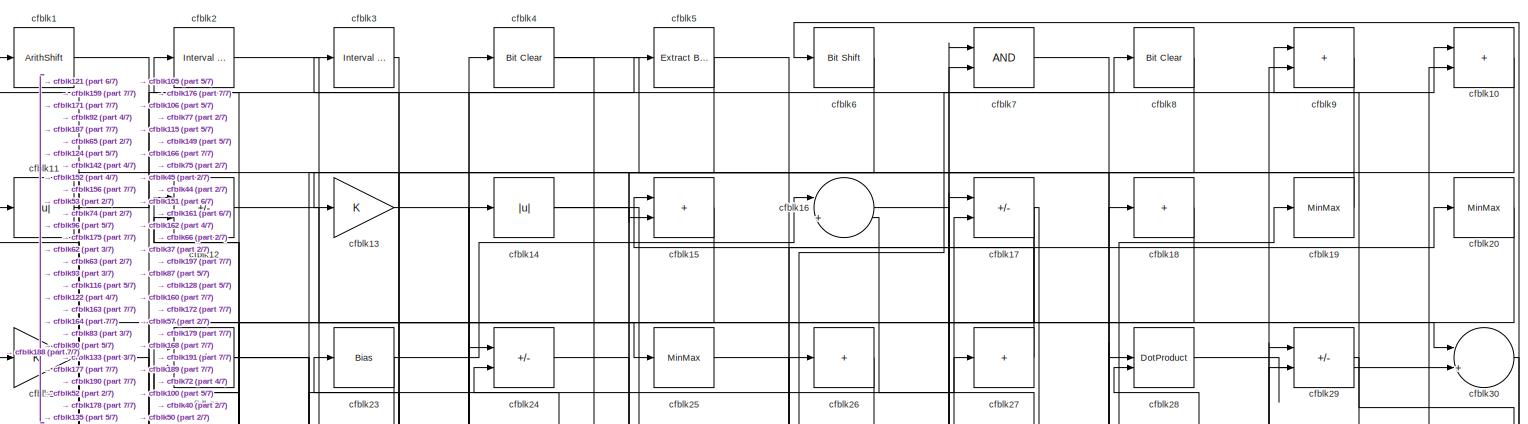
[diagram: root canvas - part 1/7, full width, top band]
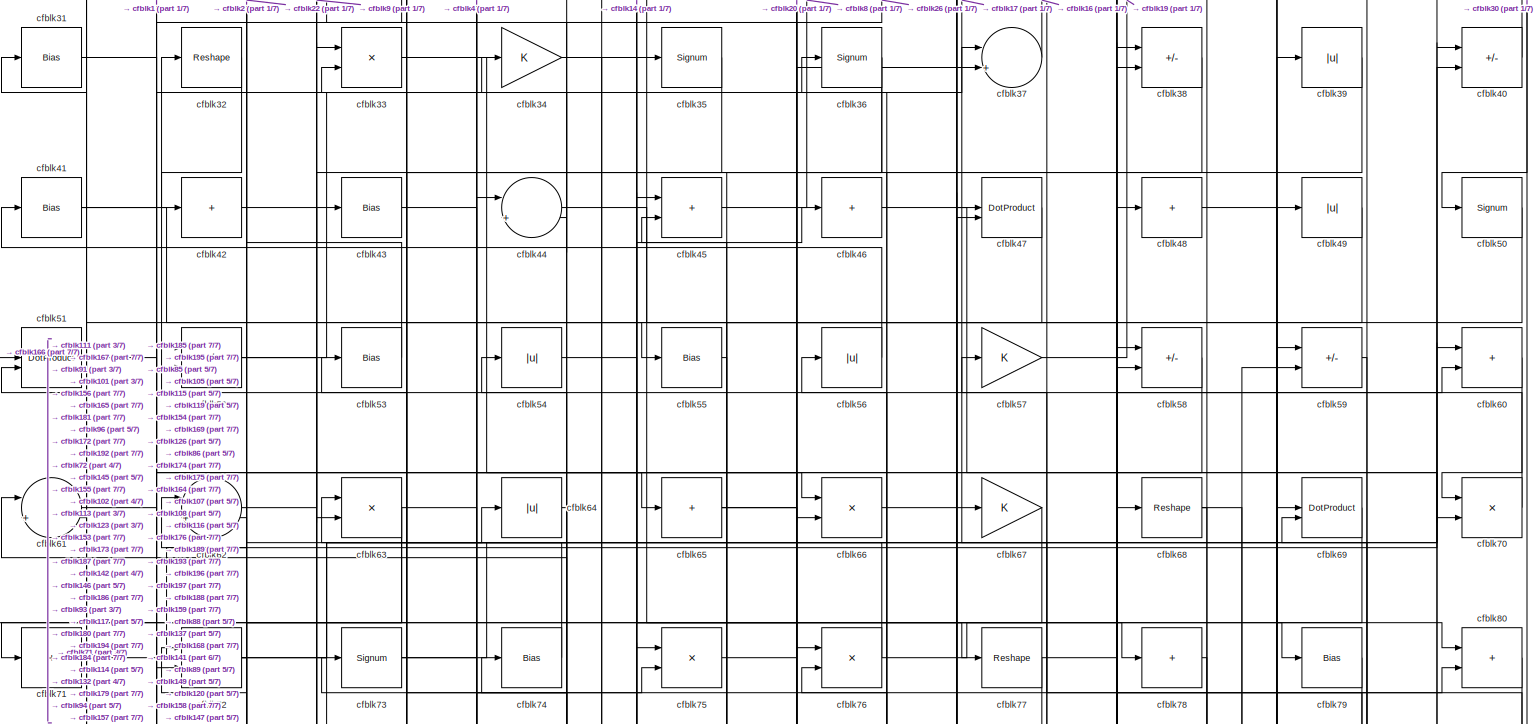
[diagram: root canvas - part 2/7, full width, top band]
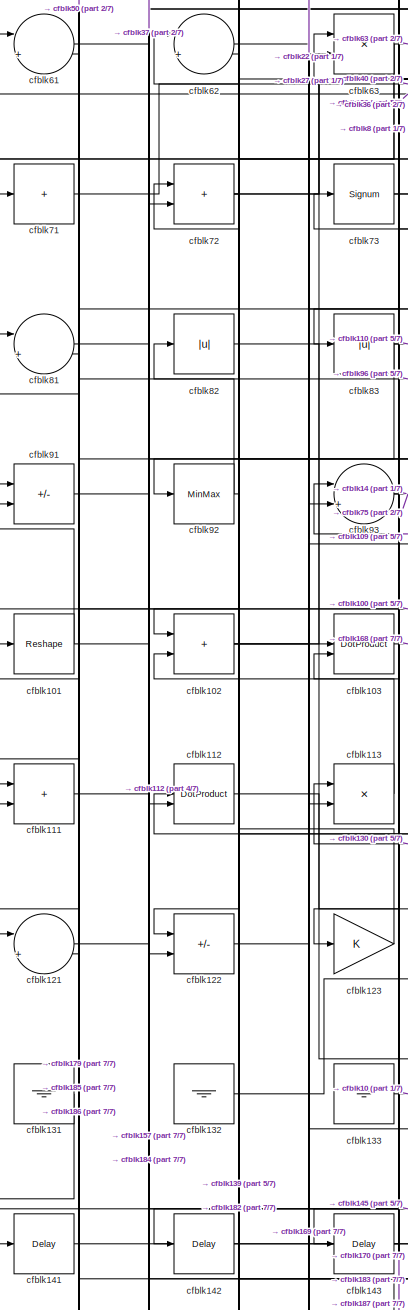
[diagram: root canvas - part 3/7, middle left region]
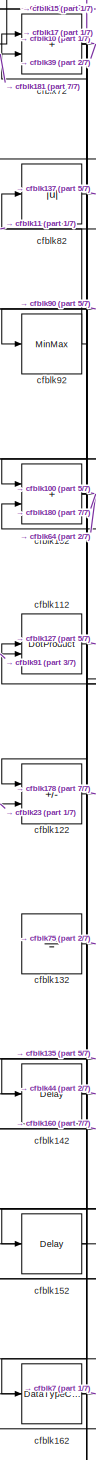
[diagram: root canvas - part 4/7, middle left region]
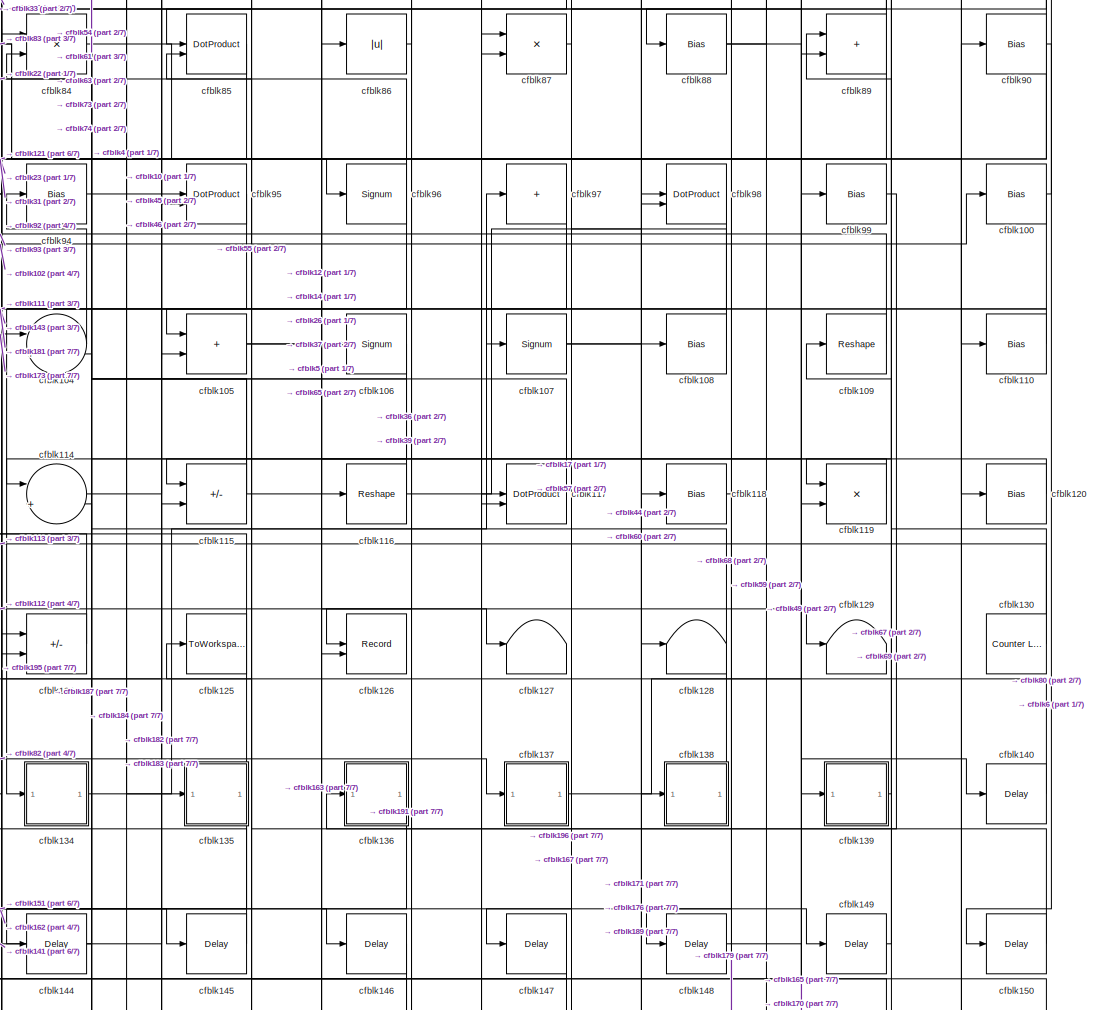
[diagram: root canvas - part 5/7, central region]
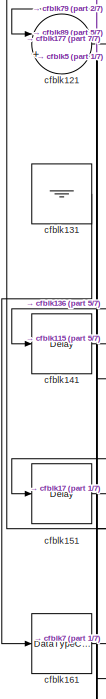
[diagram: root canvas - part 6/7, bottom left region]
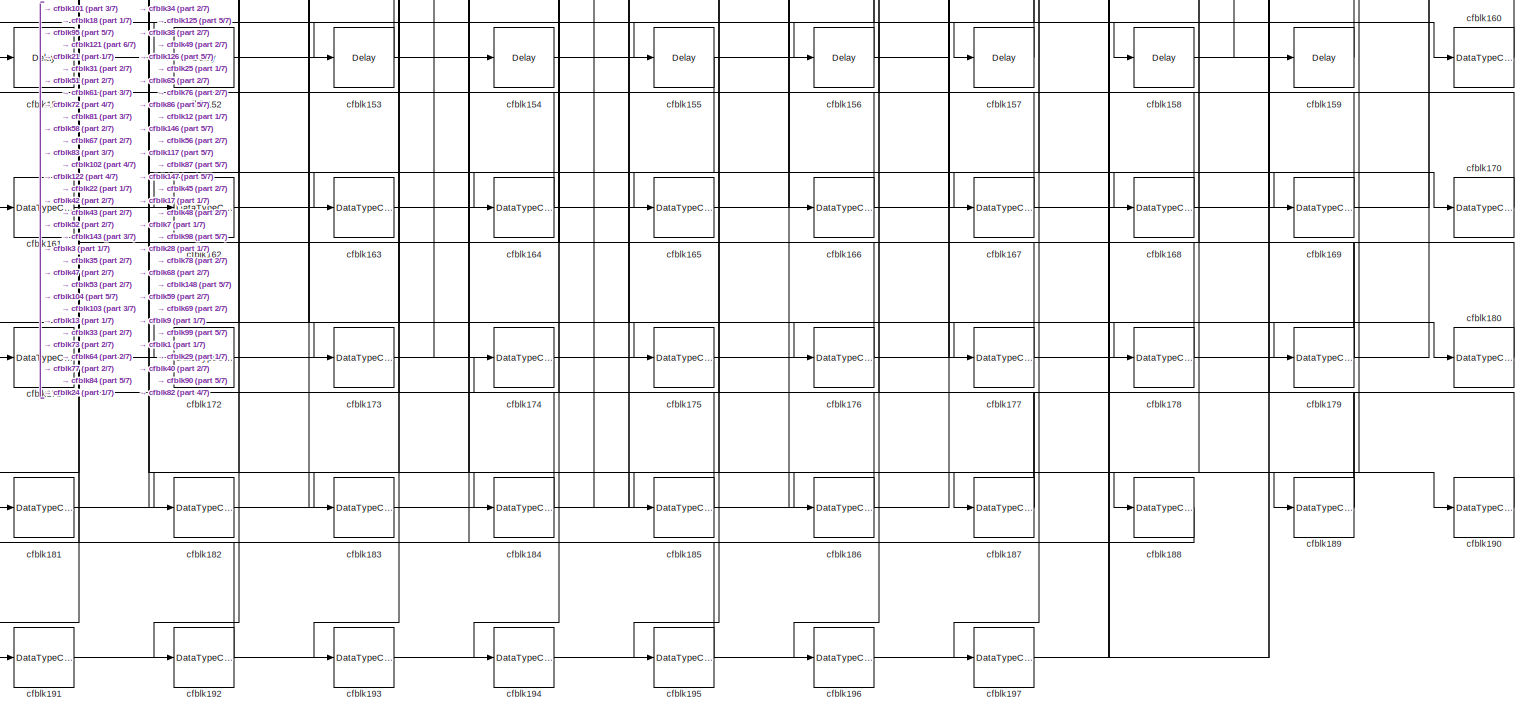
[diagram: root canvas - part 7/7, full width, bottom band]
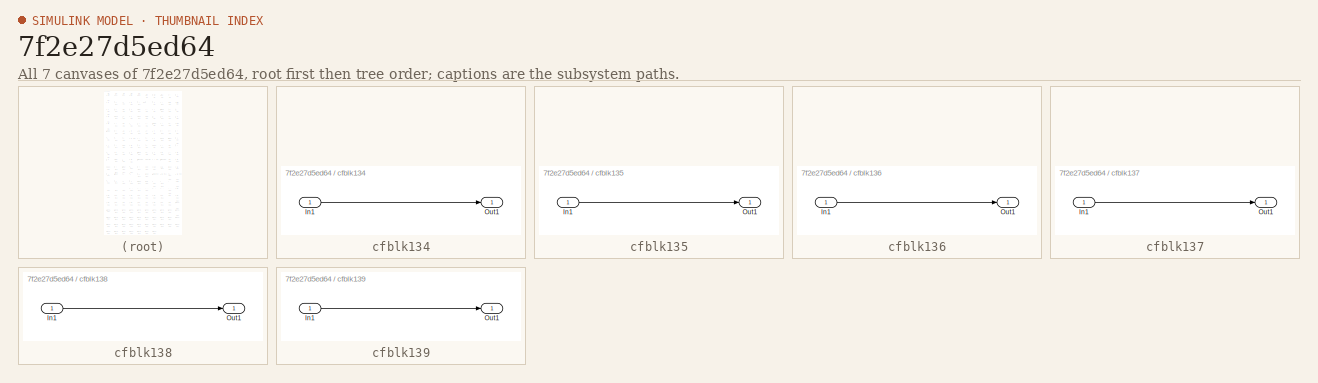
[diagram: thumbnail index - all 7 canvases of the model, root first then tree order]
MODEL slx_7f2e27d5ed64
KIND model
CONFIG AbsTol = auto
CONFIG EnableMultiTasking = off
CONFIG FixedStep = auto
CONFIG MaxStep = auto
CONFIG MinStep = auto
CONFIG RelTol = 1e-3
CONFIG SampleTimeConstraint = Unconstrained
CONFIG SolverName = VariableStepAuto
CONFIG StartTime = 0.0
CONFIG StopTime = 10.0
BLOCK [ArithShift] cfblk1
  BitShiftNumber = 8
  InputPortMap = u0
BLOCK [Sum] cfblk10
  IconShape = rectangular
BLOCK [Bias] cfblk100
  Bias = 0.0
  SaturateOnIntegerOverflow = off
BLOCK [Reshape] cfblk101
BLOCK [Sum] cfblk102
  IconShape = rectangular
BLOCK [DotProduct] cfblk103
  OutDataTypeStr = Inherit: Inherit via internal rule
BLOCK [Sum] cfblk104
  Inputs = |++
BLOCK [Sum] cfblk105
  IconShape = rectangular
BLOCK [Signum] cfblk106
BLOCK [Signum] cfblk107
BLOCK [Bias] cfblk108
  Bias = 0.0
  SaturateOnIntegerOverflow = off
BLOCK [Reshape] cfblk109
BLOCK [Abs] cfblk11
  SaturateOnIntegerOverflow = off
BLOCK [Bias] cfblk110
  Bias = 0.0
  SaturateOnIntegerOverflow = off
BLOCK [Sum] cfblk111
  IconShape = rectangular
BLOCK [DotProduct] cfblk112
  OutDataTypeStr = Inherit: Inherit via internal rule
BLOCK [Product] cfblk113
  Inputs = */
  RndMeth = Zero
  SaturateOnIntegerOverflow = on
BLOCK [Sum] cfblk114
  Inputs = |++
BLOCK [Sum] cfblk115
  IconShape = rectangular
  Inputs = +-
BLOCK [Reshape] cfblk116
BLOCK [DotProduct] cfblk117
  OutDataTypeStr = Inherit: Inherit via internal rule
BLOCK [Bias] cfblk118
  Bias = 0.0
  SaturateOnIntegerOverflow = off
BLOCK [Product] cfblk119
  Inputs = */
  RndMeth = Zero
  SaturateOnIntegerOverflow = on
BLOCK [Sum] cfblk12
  IconShape = rectangular
  Inputs = +-
BLOCK [Bias] cfblk120
  Bias = 0.0
  SaturateOnIntegerOverflow = off
BLOCK [Sum] cfblk121
  Inputs = |++
BLOCK [Sum] cfblk122
  IconShape = rectangular
  Inputs = +-
BLOCK [Gain] cfblk123
BLOCK [Sum] cfblk124
  IconShape = rectangular
  Inputs = +-
BLOCK [ToWorkspace] cfblk125
  MaxDataPoints = inf
  SampleTime = -1
  SaveFormat = Timeseries
  VariableName = simout
BLOCK [Record] cfblk126
  CompatibilityTag = XY
  FileSettingsInternal = {"entries":[{"content":{"excelSettings":{"content":{},"type":"Streamout.ExcelSettings"}},"type":"Streamout.FileSettingStorage","uuid":""}],"packageUris":["http:\/\/schema.mathworks.com\/mf0\/streamout_blocks\/R2020a"],"version":"1.0"}
  Layout = [1 1]
  SignalsInternal = {"entries":[{"content":{"signals":[{"content":{"blockPath":[],"dimensions":[1],"domain":"","lineColor":"#a2142f","plots":[1],"port":1,"signalID":846,"signalName":"XY Graph:1"},"type":"RecordBlkView.Signal","uuid":""},{"content":{"blockPath":[],"dimensions":[1],"domain":"","lineColor":"#139fff","plots":[1],"port":2,"signalID":849,"signalName":"XY Graph:2"},"type":"RecordBlkView.Signal","uuid":""}]}...<+144ch>
  VisualizationBindings = {"xyplotplugin":{"info":[{"series":[{"bindingParametersList":[{"parameter":"X-Axis","signalID":846,"signalName":"XY Graph:1"},{"parameter":"Y-Axis","signalID":849,"signalName":"XY Graph:2"}],"seriesID":27397}],"subplotID":1}]}}
  st = -1
BLOCK [Terminator] cfblk127
BLOCK [Terminator] cfblk128
BLOCK [Terminator] cfblk129
BLOCK [Gain] cfblk13
BLOCK [Reference] cfblk130  REF=hdlsllib/Sources/Counter
Limited
  SourceBlock = hdlsllib/Sources/Counter\nLimited
  SourceType = Counter Limited
BLOCK [Ground] cfblk131
BLOCK [Ground] cfblk132
BLOCK [Ground] cfblk133
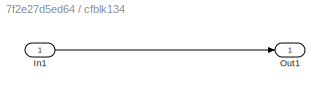
BLOCK [SubSystem] cfblk134
  LibrarySourceBlock = hdlsllib/Ports &\nSubsystems/Subsystem
BLOCK [Inport] cfblk134/In1
BLOCK [Outport] cfblk134/Out1
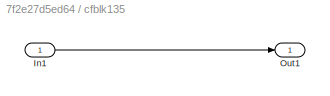
BLOCK [SubSystem] cfblk135
  LibrarySourceBlock = hdlsllib/Ports &\nSubsystems/Subsystem
BLOCK [Inport] cfblk135/In1
BLOCK [Outport] cfblk135/Out1
BLOCK [SubSystem] cfblk136
  LibrarySourceBlock = hdlsllib/Ports &\nSubsystems/Subsystem
BLOCK [Inport] cfblk136/In1
BLOCK [Outport] cfblk136/Out1
BLOCK [SubSystem] cfblk137
  LibrarySourceBlock = hdlsllib/Ports &\nSubsystems/Subsystem
BLOCK [Inport] cfblk137/In1
BLOCK [Outport] cfblk137/Out1
BLOCK [SubSystem] cfblk138
  LibrarySourceBlock = hdlsllib/Ports &\nSubsystems/Subsystem
BLOCK [Inport] cfblk138/In1
BLOCK [Outport] cfblk138/Out1
BLOCK [SubSystem] cfblk139
  LibrarySourceBlock = hdlsllib/Ports &\nSubsystems/Subsystem
BLOCK [Inport] cfblk139/In1
BLOCK [Outport] cfblk139/Out1
BLOCK [Abs] cfblk14
  SaturateOnIntegerOverflow = off
BLOCK [Delay] cfblk140
  InputPortMap = u0
  SampleTime = 1
BLOCK [Delay] cfblk141
  InputPortMap = u0
  SampleTime = 1
BLOCK [Delay] cfblk142
  InputPortMap = u0
  SampleTime = 1
BLOCK [Delay] cfblk143
  InputPortMap = u0
  SampleTime = 1
BLOCK [Delay] cfblk144
  InputPortMap = u0
  SampleTime = 1
BLOCK [Delay] cfblk145
  InputPortMap = u0
  SampleTime = 1
BLOCK [Delay] cfblk146
  InputPortMap = u0
  SampleTime = 1
BLOCK [Delay] cfblk147
  InputPortMap = u0
  SampleTime = 1
BLOCK [Delay] cfblk148
  InputPortMap = u0
  SampleTime = 1
BLOCK [Delay] cfblk149
  InputPortMap = u0
  SampleTime = 1
BLOCK [Sum] cfblk15
  IconShape = rectangular
BLOCK [Delay] cfblk150
  InputPortMap = u0
  SampleTime = 1
BLOCK [Delay] cfblk151
  InputPortMap = u0
  SampleTime = 1
BLOCK [Delay] cfblk152
  InputPortMap = u0
  SampleTime = 1
BLOCK [Delay] cfblk153
  InputPortMap = u0
  SampleTime = 1
BLOCK [Delay] cfblk154
  InputPortMap = u0
  SampleTime = 1
BLOCK [Delay] cfblk155
  InputPortMap = u0
  SampleTime = 1
BLOCK [Delay] cfblk156
  InputPortMap = u0
  SampleTime = 1
BLOCK [Delay] cfblk157
  InputPortMap = u0
  SampleTime = 1
BLOCK [Delay] cfblk158
  InputPortMap = u0
  SampleTime = 1
BLOCK [Delay] cfblk159
  InputPortMap = u0
  SampleTime = 1
BLOCK [Sum] cfblk16
  Inputs = |++
BLOCK [DataTypeConversion] cfblk160
  OutDataTypeStr = uint8
  RndMeth = Floor
  SaturateOnIntegerOverflow = off
BLOCK [DataTypeConversion] cfblk161
  OutDataTypeStr = uint8
  RndMeth = Floor
  SaturateOnIntegerOverflow = off
BLOCK [DataTypeConversion] cfblk162
  OutDataTypeStr = uint8
  RndMeth = Floor
  SaturateOnIntegerOverflow = off
BLOCK [DataTypeConversion] cfblk163
  RndMeth = Floor
  SaturateOnIntegerOverflow = off
BLOCK [DataTypeConversion] cfblk164
  OutDataTypeStr = uint8
  RndMeth = Floor
  SaturateOnIntegerOverflow = off
BLOCK [DataTypeConversion] cfblk165
  OutDataTypeStr = uint8
  RndMeth = Floor
  SaturateOnIntegerOverflow = off
BLOCK [DataTypeConversion] cfblk166
  OutDataTypeStr = uint8
  RndMeth = Floor
  SaturateOnIntegerOverflow = off
BLOCK [DataTypeConversion] cfblk167
  OutDataTypeStr = uint8
  RndMeth = Floor
  SaturateOnIntegerOverflow = off
BLOCK [DataTypeConversion] cfblk168
  RndMeth = Floor
  SaturateOnIntegerOverflow = off
BLOCK [DataTypeConversion] cfblk169
  OutDataTypeStr = uint8
  RndMeth = Floor
  SaturateOnIntegerOverflow = off
BLOCK [Sum] cfblk17
  IconShape = rectangular
  Inputs = +-
BLOCK [DataTypeConversion] cfblk170
  OutDataTypeStr = uint8
  RndMeth = Floor
  SaturateOnIntegerOverflow = off
BLOCK [DataTypeConversion] cfblk171
  OutDataTypeStr = uint8
  RndMeth = Floor
  SaturateOnIntegerOverflow = off
BLOCK [DataTypeConversion] cfblk172
  OutDataTypeStr = uint8
  RndMeth = Floor
  SaturateOnIntegerOverflow = off
BLOCK [DataTypeConversion] cfblk173
  RndMeth = Floor
  SaturateOnIntegerOverflow = off
BLOCK [DataTypeConversion] cfblk174
  OutDataTypeStr = uint8
  RndMeth = Floor
  SaturateOnIntegerOverflow = off
BLOCK [DataTypeConversion] cfblk175
  OutDataTypeStr = uint8
  RndMeth = Floor
  SaturateOnIntegerOverflow = off
BLOCK [DataTypeConversion] cfblk176
  RndMeth = Floor
  SaturateOnIntegerOverflow = off
BLOCK [DataTypeConversion] cfblk177
  OutDataTypeStr = uint8
  RndMeth = Floor
  SaturateOnIntegerOverflow = off
BLOCK [DataTypeConversion] cfblk178
  OutDataTypeStr = uint8
  RndMeth = Floor
  SaturateOnIntegerOverflow = off
BLOCK [DataTypeConversion] cfblk179
  RndMeth = Floor
  SaturateOnIntegerOverflow = off
BLOCK [Sum] cfblk18
  IconShape = rectangular
  Inputs = +
BLOCK [DataTypeConversion] cfblk180
  OutDataTypeStr = uint8
  RndMeth = Floor
  SaturateOnIntegerOverflow = off
BLOCK [DataTypeConversion] cfblk181
  RndMeth = Floor
  SaturateOnIntegerOverflow = off
BLOCK [DataTypeConversion] cfblk182
  OutDataTypeStr = uint8
  RndMeth = Floor
  SaturateOnIntegerOverflow = off
BLOCK [DataTypeConversion] cfblk183
  OutDataTypeStr = uint8
  RndMeth = Floor
  SaturateOnIntegerOverflow = off
BLOCK [DataTypeConversion] cfblk184
  RndMeth = Floor
  SaturateOnIntegerOverflow = off
BLOCK [DataTypeConversion] cfblk185
  OutDataTypeStr = uint8
  RndMeth = Floor
  SaturateOnIntegerOverflow = off
BLOCK [DataTypeConversion] cfblk186
  OutDataTypeStr = uint8
  RndMeth = Floor
  SaturateOnIntegerOverflow = off
BLOCK [DataTypeConversion] cfblk187
  RndMeth = Floor
  SaturateOnIntegerOverflow = off
BLOCK [DataTypeConversion] cfblk188
  OutDataTypeStr = uint8
  RndMeth = Floor
  SaturateOnIntegerOverflow = off
BLOCK [DataTypeConversion] cfblk189
  RndMeth = Floor
  SaturateOnIntegerOverflow = off
BLOCK [MinMax] cfblk19
BLOCK [DataTypeConversion] cfblk190
  OutDataTypeStr = uint8
  RndMeth = Floor
  SaturateOnIntegerOverflow = off
BLOCK [DataTypeConversion] cfblk191
  OutDataTypeStr = uint8
  RndMeth = Floor
  SaturateOnIntegerOverflow = off
BLOCK [DataTypeConversion] cfblk192
  OutDataTypeStr = uint8
  RndMeth = Floor
  SaturateOnIntegerOverflow = off
BLOCK [DataTypeConversion] cfblk193
  OutDataTypeStr = uint8
  RndMeth = Floor
  SaturateOnIntegerOverflow = off
BLOCK [DataTypeConversion] cfblk194
  OutDataTypeStr = uint8
  RndMeth = Floor
  SaturateOnIntegerOverflow = off
BLOCK [DataTypeConversion] cfblk195
  RndMeth = Floor
  SaturateOnIntegerOverflow = off
BLOCK [DataTypeConversion] cfblk196
  OutDataTypeStr = uint8
  RndMeth = Floor
  SaturateOnIntegerOverflow = off
BLOCK [DataTypeConversion] cfblk197
  OutDataTypeStr = uint8
  RndMeth = Floor
  SaturateOnIntegerOverflow = off
BLOCK [Reference] cfblk2  REF=hdlsllib/Logic and Bit
Operations/Interval Test
  SourceBlock = hdlsllib/Logic and Bit\nOperations/Interval Test
  SourceType = Interval Test
BLOCK [MinMax] cfblk20
BLOCK [Gain] cfblk21
BLOCK [Sum] cfblk22
  IconShape = rectangular
  Inputs = +-
BLOCK [Bias] cfblk23
  Bias = 0.0
  SaturateOnIntegerOverflow = off
BLOCK [Sum] cfblk24
  IconShape = rectangular
  Inputs = +-
BLOCK [MinMax] cfblk25
BLOCK [Sum] cfblk26
  IconShape = rectangular
  Inputs = +
BLOCK [Sum] cfblk27
  IconShape = rectangular
  Inputs = +
BLOCK [DotProduct] cfblk28
  OutDataTypeStr = Inherit: Inherit via internal rule
BLOCK [Sum] cfblk29
  IconShape = rectangular
  Inputs = +-
BLOCK [Reference] cfblk3  REF=hdlsllib/Logic and Bit
Operations/Interval Test
  SourceBlock = hdlsllib/Logic and Bit\nOperations/Interval Test
  SourceType = Interval Test
BLOCK [Sum] cfblk30
  Inputs = |++
BLOCK [Bias] cfblk31
  Bias = 0.0
  SaturateOnIntegerOverflow = off
BLOCK [Reshape] cfblk32
BLOCK [Product] cfblk33
  Inputs = */
  RndMeth = Zero
  SaturateOnIntegerOverflow = on
BLOCK [Gain] cfblk34
BLOCK [Signum] cfblk35
BLOCK [Signum] cfblk36
BLOCK [Sum] cfblk37
  Inputs = |++
BLOCK [Sum] cfblk38
  IconShape = rectangular
  Inputs = +-
BLOCK [Abs] cfblk39
  SaturateOnIntegerOverflow = off
BLOCK [Reference] cfblk4  REF=simulink/Logic and Bit
Operations/Bit Clear
  LibrarySourceBlock = hdlsllib/Logic and Bit\nOperations/Bit Clear
  SourceBlock = simulink/Logic and Bit\nOperations/Bit Clear
  SourceType = Bit Clear
BLOCK [Sum] cfblk40
  IconShape = rectangular
  Inputs = +-
BLOCK [Bias] cfblk41
  Bias = 0.0
  SaturateOnIntegerOverflow = off
BLOCK [Sum] cfblk42
  IconShape = rectangular
  Inputs = +
BLOCK [Bias] cfblk43
  Bias = 0.0
  SaturateOnIntegerOverflow = off
BLOCK [Sum] cfblk44
  Inputs = |++
BLOCK [Sum] cfblk45
  IconShape = rectangular
BLOCK [Sum] cfblk46
  IconShape = rectangular
  Inputs = +
BLOCK [DotProduct] cfblk47
  OutDataTypeStr = Inherit: Inherit via internal rule
BLOCK [Sum] cfblk48
  IconShape = rectangular
  Inputs = +
BLOCK [Abs] cfblk49
  SaturateOnIntegerOverflow = off
BLOCK [Reference] cfblk5  REF=simulink/Logic and Bit
Operations/Extract Bits
  LibrarySourceBlock = hdlsllib/Logic and Bit\nOperations/Extract Bits
  SourceBlock = simulink/Logic and Bit\nOperations/Extract Bits
  SourceType = Extract Bits
BLOCK [Signum] cfblk50
BLOCK [DotProduct] cfblk51
  OutDataTypeStr = Inherit: Inherit via internal rule
BLOCK [Sum] cfblk52
  IconShape = rectangular
  Inputs = +-
BLOCK [Bias] cfblk53
  Bias = 0.0
  SaturateOnIntegerOverflow = off
BLOCK [Abs] cfblk54
  SaturateOnIntegerOverflow = off
BLOCK [Bias] cfblk55
  Bias = 0.0
  SaturateOnIntegerOverflow = off
BLOCK [Abs] cfblk56
  SaturateOnIntegerOverflow = off
BLOCK [Gain] cfblk57
BLOCK [Sum] cfblk58
  IconShape = rectangular
  Inputs = +-
BLOCK [Sum] cfblk59
  IconShape = rectangular
  Inputs = +-
BLOCK [Reference] cfblk6  REF=hdlsllib/Logic and Bit
Operations/Bit Shift
  SourceBlock = hdlsllib/Logic and Bit\nOperations/Bit Shift
  SourceType = Bit Shift
BLOCK [Sum] cfblk60
  IconShape = rectangular
BLOCK [Sum] cfblk61
  Inputs = |++
BLOCK [Sum] cfblk62
  Inputs = |++
BLOCK [Product] cfblk63
  Inputs = */
  RndMeth = Zero
  SaturateOnIntegerOverflow = on
BLOCK [Abs] cfblk64
  SaturateOnIntegerOverflow = off
BLOCK [Sum] cfblk65
  IconShape = rectangular
  Inputs = +
BLOCK [Product] cfblk66
  Inputs = */
  RndMeth = Zero
  SaturateOnIntegerOverflow = on
BLOCK [Gain] cfblk67
BLOCK [Reshape] cfblk68
BLOCK [DotProduct] cfblk69
  OutDataTypeStr = Inherit: Inherit via internal rule
BLOCK [Logic] cfblk7
  AllPortsSameDT = off
  OutDataTypeStr = boolean
BLOCK [Product] cfblk70
  Inputs = */
  RndMeth = Zero
  SaturateOnIntegerOverflow = on
BLOCK [Sum] cfblk71
  IconShape = rectangular
  Inputs = +
BLOCK [Sum] cfblk72
  IconShape = rectangular
BLOCK [Signum] cfblk73
BLOCK [Bias] cfblk74
  Bias = 0.0
  SaturateOnIntegerOverflow = off
BLOCK [Product] cfblk75
  Inputs = */
  RndMeth = Zero
  SaturateOnIntegerOverflow = on
BLOCK [Product] cfblk76
  Inputs = */
  RndMeth = Zero
  SaturateOnIntegerOverflow = on
BLOCK [Reshape] cfblk77
BLOCK [Sum] cfblk78
  IconShape = rectangular
  Inputs = +
BLOCK [Bias] cfblk79
  Bias = 0.0
  SaturateOnIntegerOverflow = off
BLOCK [Reference] cfblk8  REF=simulink/Logic and Bit
Operations/Bit Clear
  LibrarySourceBlock = hdlsllib/Logic and Bit\nOperations/Bit Clear
  SourceBlock = simulink/Logic and Bit\nOperations/Bit Clear
  SourceType = Bit Clear
BLOCK [Sum] cfblk80
  IconShape = rectangular
BLOCK [Sum] cfblk81
  Inputs = |++
BLOCK [Abs] cfblk82
  SaturateOnIntegerOverflow = off
BLOCK [Abs] cfblk83
  SaturateOnIntegerOverflow = off
BLOCK [Product] cfblk84
  Inputs = */
  RndMeth = Zero
  SaturateOnIntegerOverflow = on
BLOCK [DotProduct] cfblk85
  OutDataTypeStr = Inherit: Inherit via internal rule
BLOCK [Abs] cfblk86
  SaturateOnIntegerOverflow = off
BLOCK [Product] cfblk87
  Inputs = */
  RndMeth = Zero
  SaturateOnIntegerOverflow = on
BLOCK [Bias] cfblk88
  Bias = 0.0
  SaturateOnIntegerOverflow = off
BLOCK [Sum] cfblk89
  IconShape = rectangular
BLOCK [Sum] cfblk9
  IconShape = rectangular
BLOCK [Bias] cfblk90
  Bias = 0.0
  SaturateOnIntegerOverflow = off
BLOCK [Sum] cfblk91
  IconShape = rectangular
  Inputs = +-
BLOCK [MinMax] cfblk92
BLOCK [Sum] cfblk93
  Inputs = |++
BLOCK [Bias] cfblk94
  Bias = 0.0
  SaturateOnIntegerOverflow = off
BLOCK [DotProduct] cfblk95
  OutDataTypeStr = Inherit: Inherit via internal rule
BLOCK [Signum] cfblk96
BLOCK [Sum] cfblk97
  IconShape = rectangular
  Inputs = +
BLOCK [DotProduct] cfblk98
  OutDataTypeStr = Inherit: Inherit via internal rule
BLOCK [Bias] cfblk99
  Bias = 0.0
  SaturateOnIntegerOverflow = off
NET cfblk100:1 -> cfblk111:2, cfblk6:1
NET cfblk101:1 -> cfblk37:1, cfblk91:1
NET cfblk102:1 -> cfblk100:1, cfblk180:1, cfblk64:1
LINE cfblk103:1 -> cfblk168:1
LINE cfblk104:1 -> cfblk94:1
NET cfblk105:1 -> cfblk129:1, cfblk37:2
LINE cfblk106:1 -> cfblk144:1
NET cfblk107:1 -> cfblk138:1, cfblk60:2
LINE cfblk108:1 -> cfblk57:1
LINE cfblk109:1 -> cfblk93:1
LINE cfblk10:1 -> cfblk105:2
LINE cfblk110:1 -> cfblk107:1
LINE cfblk111:1 -> cfblk145:1
LINE cfblk112:1 -> cfblk127:1
LINE cfblk113:1 -> cfblk62:1
LINE cfblk114:1 -> cfblk45:1
NET cfblk115:1 -> cfblk26:1, cfblk54:1, cfblk74:1
NET cfblk116:1 -> cfblk68:1, cfblk73:1
LINE cfblk117:1 -> cfblk63:1
LINE cfblk118:1 -> cfblk148:1
LINE cfblk119:1 -> cfblk115:1
LINE cfblk11:1 -> cfblk5:1
LINE cfblk120:1 -> cfblk114:1
LINE cfblk121:1 -> cfblk177:1
LINE cfblk122:1 -> cfblk178:1
LINE cfblk123:1 -> cfblk62:2
LINE cfblk124:1 -> cfblk12:1
LINE cfblk12:1 -> cfblk116:1
NET cfblk130:1 -> cfblk113:1, cfblk89:1
LINE cfblk131:1 -> cfblk161:1
LINE cfblk132:1 -> cfblk75:1
LINE cfblk133:1 -> cfblk10:1
LINE cfblk134/In1:1 -> cfblk134/Out1:1
LINE cfblk134:1 -> cfblk97:1
LINE cfblk135/In1:1 -> cfblk135/Out1:1
NET cfblk135:1 -> cfblk112:1, cfblk162:1
LINE cfblk136/In1:1 -> cfblk136/Out1:1
LINE cfblk136:1 -> cfblk151:1
LINE cfblk137/In1:1 -> cfblk137/Out1:1
LINE cfblk137:1 -> cfblk49:1
LINE cfblk138/In1:1 -> cfblk138/Out1:1
LINE cfblk138:1 -> cfblk61:1
LINE cfblk139/In1:1 -> cfblk139/Out1:1
LINE cfblk139:1 -> cfblk109:1
LINE cfblk13:1 -> cfblk190:1
LINE cfblk140:1 -> cfblk124:1
LINE cfblk141:1 -> cfblk115:2
LINE cfblk142:1 -> cfblk44:1
LINE cfblk143:1 -> cfblk183:1
LINE cfblk144:1 -> cfblk114:2
LINE cfblk145:1 -> cfblk33:1
LINE cfblk146:1 -> cfblk191:1
LINE cfblk147:1 -> cfblk196:1
LINE cfblk148:1 -> cfblk170:1
LINE cfblk149:1 -> cfblk69:2
NET cfblk14:1 -> cfblk106:1, cfblk77:1
LINE cfblk150:1 -> cfblk85:2
LINE cfblk151:1 -> cfblk17:1
LINE cfblk152:1 -> cfblk102:2
LINE cfblk153:1 -> cfblk52:1
LINE cfblk154:1 -> cfblk76:1
LINE cfblk155:1 -> cfblk193:1
LINE cfblk156:1 -> cfblk12:2
LINE cfblk157:1 -> cfblk45:2
LINE cfblk158:1 -> cfblk59:1
LINE cfblk159:1 -> cfblk1:1
LINE cfblk15:1 -> cfblk152:1
LINE cfblk160:1 -> cfblk82:1
LINE cfblk161:1 -> cfblk7:1
LINE cfblk162:1 -> cfblk7:2
NET cfblk163:1 -> cfblk126:2, cfblk87:1, cfblk90:1
LINE cfblk164:1 -> cfblk3:1
LINE cfblk165:1 -> cfblk99:1
LINE cfblk166:1 -> cfblk51:1
LINE cfblk167:1 -> cfblk51:2
NET cfblk168:1 -> cfblk56:1, cfblk9:2
LINE cfblk169:1 -> cfblk103:1
LINE cfblk16:1 -> cfblk30:1
LINE cfblk170:1 -> cfblk103:2
LINE cfblk171:1 -> cfblk98:2
LINE cfblk172:1 -> cfblk18:1
NET cfblk173:1 -> cfblk104:1, cfblk154:1
LINE cfblk174:1 -> cfblk47:1
LINE cfblk175:1 -> cfblk47:2
NET cfblk176:1 -> cfblk40:2, cfblk48:1, cfblk84:2
LINE cfblk177:1 -> cfblk24:1
LINE cfblk178:1 -> cfblk24:2
NET cfblk179:1 -> cfblk28:2, cfblk61:2, cfblk98:1
NET cfblk17:1 -> cfblk142:1, cfblk197:1, cfblk87:2
LINE cfblk180:1 -> cfblk34:1
NET cfblk181:1 -> cfblk43:1, cfblk72:2
LINE cfblk182:1 -> cfblk95:1
LINE cfblk183:1 -> cfblk95:2
NET cfblk184:1 -> cfblk117:1, cfblk174:1, cfblk35:1, cfblk86:1
LINE cfblk185:1 -> cfblk81:1
LINE cfblk186:1 -> cfblk81:2
NET cfblk187:1 -> cfblk101:1, cfblk104:2, cfblk53:1
LINE cfblk188:1 -> cfblk21:1
NET cfblk189:1 -> cfblk125:1, cfblk28:1, cfblk76:2
LINE cfblk18:1 -> cfblk171:1
LINE cfblk190:1 -> cfblk29:1
LINE cfblk191:1 -> cfblk29:2
LINE cfblk192:1 -> cfblk31:1
LINE cfblk193:1 -> cfblk58:1
LINE cfblk194:1 -> cfblk58:2
NET cfblk195:1 -> cfblk69:1, cfblk84:1
LINE cfblk196:1 -> cfblk38:1
LINE cfblk197:1 -> cfblk38:2
LINE cfblk19:1 -> cfblk13:1
LINE cfblk1:1 -> cfblk65:1
LINE cfblk20:1 -> cfblk52:2
LINE cfblk21:1 -> cfblk187:1
NET cfblk22:1 -> cfblk175:1, cfblk93:2
NET cfblk23:1 -> cfblk122:2, cfblk16:1
LINE cfblk24:1 -> cfblk176:1
LINE cfblk25:1 -> cfblk166:1
LINE cfblk26:1 -> cfblk44:2
LINE cfblk27:1 -> cfblk15:1
LINE cfblk28:1 -> cfblk30:2
LINE cfblk29:1 -> cfblk189:1
LINE cfblk2:1 -> cfblk25:1
LINE cfblk30:1 -> cfblk50:1
NET cfblk31:1 -> cfblk156:1, cfblk96:1
LINE cfblk32:1 -> cfblk42:1
NET cfblk33:1 -> cfblk120:1, cfblk158:1
LINE cfblk34:1 -> cfblk179:1
LINE cfblk35:1 -> cfblk153:1
NET cfblk36:1 -> cfblk113:2, cfblk123:1
LINE cfblk37:1 -> cfblk16:2
LINE cfblk38:1 -> cfblk195:1
LINE cfblk39:1 -> cfblk126:1
LINE cfblk3:1 -> cfblk163:1
LINE cfblk40:1 -> cfblk9:1
NET cfblk41:1 -> cfblk55:1, cfblk66:2
LINE cfblk42:1 -> cfblk155:1
LINE cfblk43:1 -> cfblk66:1
LINE cfblk44:1 -> cfblk108:1
LINE cfblk45:1 -> cfblk8:1
LINE cfblk46:1 -> cfblk70:2
LINE cfblk47:1 -> cfblk173:1
LINE cfblk48:1 -> cfblk80:1
LINE cfblk49:1 -> cfblk185:1
NET cfblk4:1 -> cfblk128:1, cfblk135:1
LINE cfblk50:1 -> cfblk71:1
LINE cfblk51:1 -> cfblk165:1
NET cfblk52:1 -> cfblk4:1, cfblk89:2
LINE cfblk53:1 -> cfblk22:1
LINE cfblk54:1 -> cfblk78:1
LINE cfblk55:1 -> cfblk85:1
LINE cfblk56:1 -> cfblk41:1
LINE cfblk57:1 -> cfblk19:1
LINE cfblk58:1 -> cfblk192:1
LINE cfblk59:1 -> cfblk119:1
NET cfblk5:1 -> cfblk121:2, cfblk149:1
LINE cfblk60:1 -> cfblk70:1
LINE cfblk61:1 -> cfblk157:1
LINE cfblk62:1 -> cfblk27:1
NET cfblk63:1 -> cfblk111:1, cfblk146:1, cfblk91:2
LINE cfblk64:1 -> cfblk194:1
NET cfblk65:1 -> cfblk119:2, cfblk169:1
LINE cfblk66:1 -> cfblk17:2
LINE cfblk67:1 -> cfblk172:1
NET cfblk68:1 -> cfblk159:1, cfblk88:1
LINE cfblk69:1 -> cfblk102:1
LINE cfblk6:1 -> cfblk15:2
LINE cfblk70:1 -> cfblk32:1
LINE cfblk71:1 -> cfblk40:1
NET cfblk72:1 -> cfblk10:2, cfblk122:1, cfblk39:1
NET cfblk73:1 -> cfblk186:1, cfblk60:1
LINE cfblk74:1 -> cfblk2:1
LINE cfblk75:1 -> cfblk20:1
NET cfblk76:1 -> cfblk33:2, cfblk79:1
NET cfblk77:1 -> cfblk164:1, cfblk80:2
LINE cfblk78:1 -> cfblk188:1
LINE cfblk79:1 -> cfblk141:1
LINE cfblk7:1 -> cfblk160:1
LINE cfblk80:1 -> cfblk147:1
LINE cfblk81:1 -> cfblk184:1
LINE cfblk82:1 -> cfblk137:1
NET cfblk83:1 -> cfblk110:1, cfblk139:1, cfblk182:1
LINE cfblk84:1 -> cfblk118:1
LINE cfblk85:1 -> cfblk124:2
LINE cfblk86:1 -> cfblk36:1
LINE cfblk87:1 -> cfblk167:1
NET cfblk88:1 -> cfblk140:1, cfblk59:2
NET cfblk89:1 -> cfblk121:1, cfblk67:1
LINE cfblk8:1 -> cfblk83:1
NET cfblk90:1 -> cfblk117:2, cfblk150:1, cfblk23:1, cfblk92:1
LINE cfblk91:1 -> cfblk112:2
NET cfblk92:1 -> cfblk11:1, cfblk72:1
NET cfblk93:1 -> cfblk14:1, cfblk75:2
LINE cfblk94:1 -> cfblk46:1
LINE cfblk95:1 -> cfblk181:1
NET cfblk96:1 -> cfblk143:1, cfblk22:2
LINE cfblk97:1 -> cfblk105:1
LINE cfblk98:1 -> cfblk134:1
LINE cfblk99:1 -> cfblk136:1
LINE cfblk9:1 -> cfblk63:2
note: NET lines group one-source signal fan-out (src -> all destinations, sorted); 1:1 wires keep LINE
